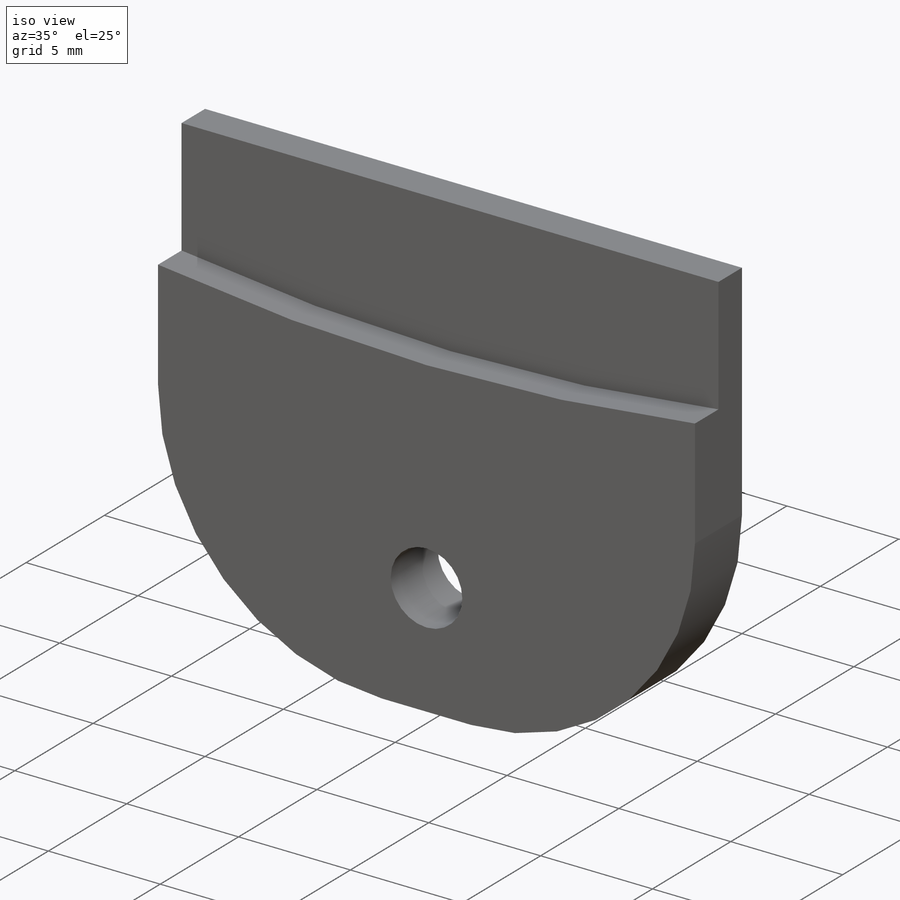
[diagram: iso view]
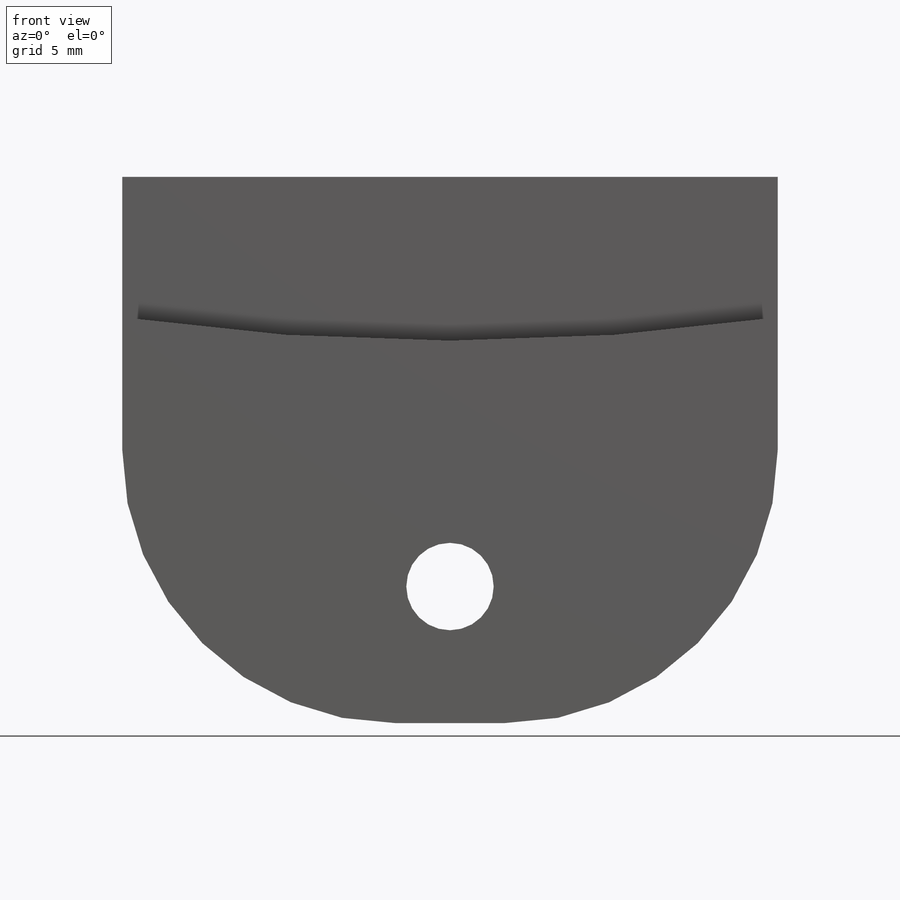
[diagram: front view]
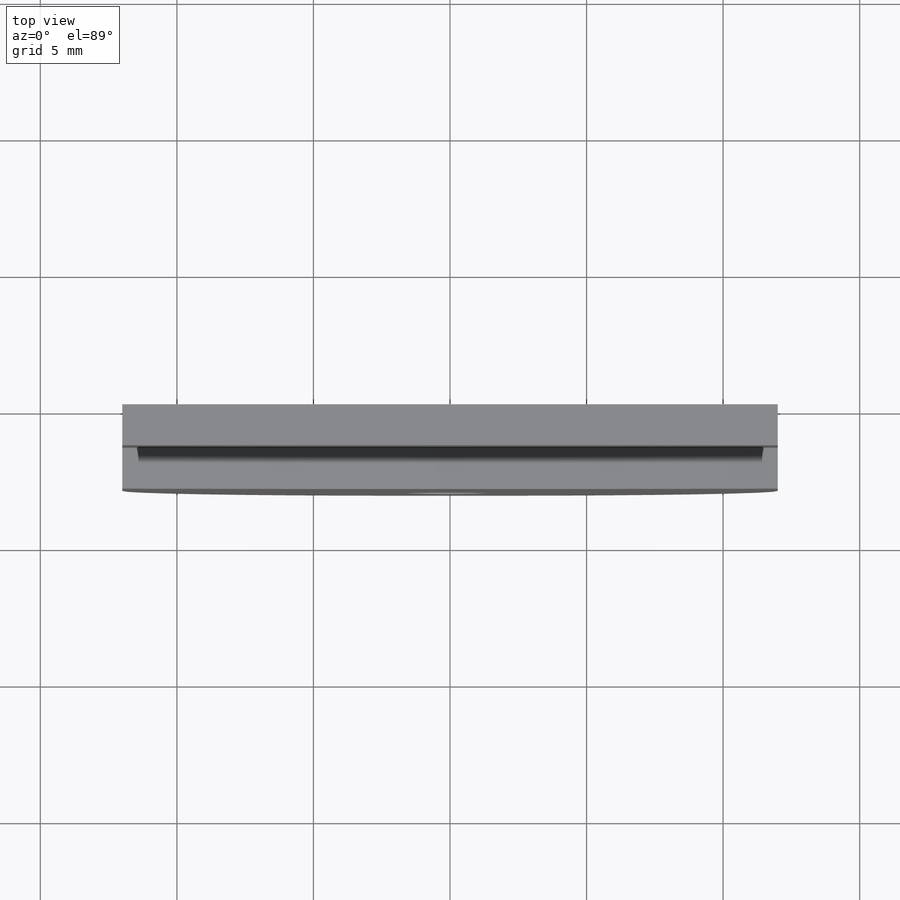
[diagram: top view]
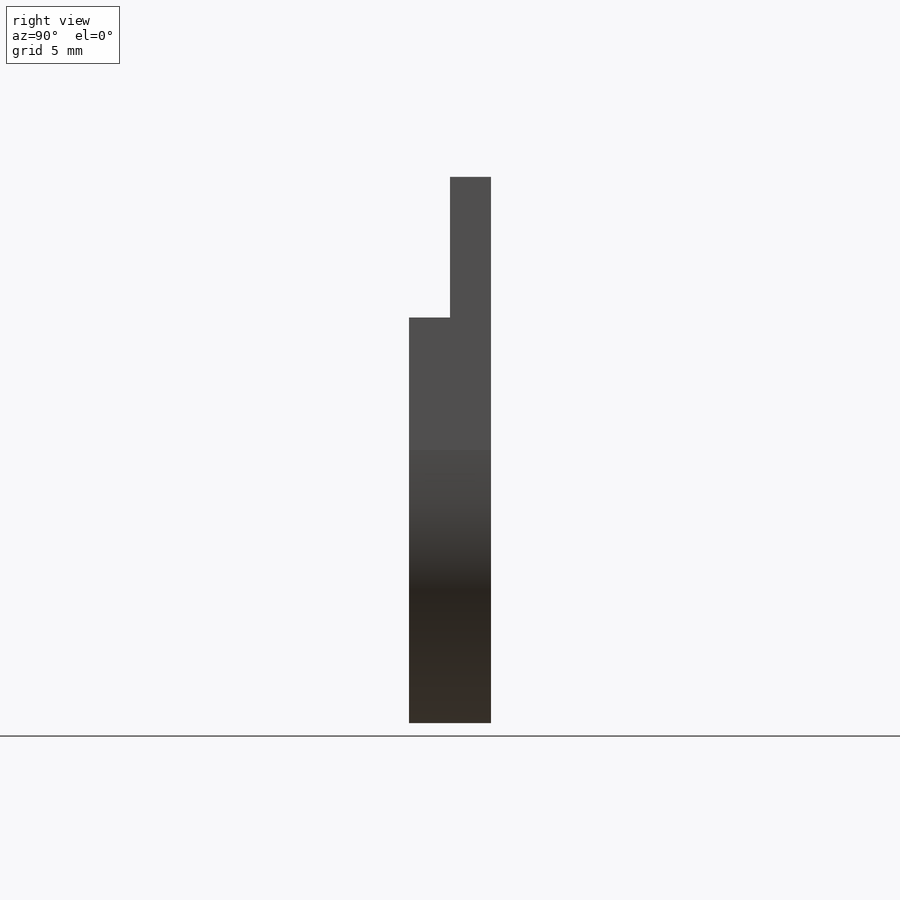
[diagram: right view]
SOLIDWORKS PART (.sldprt)
format: sldprt  version: not decoded by parser v0  size: 160,768 bytes
history: native  units: mm
features: sketch x3, cut_extrude x2, material x1, extrude x1, fillet x1 (+11 scaffold rows collapsed)
feature tree (19):
  scaffold x11  (default folders/planes/origin — collapsed)
  material  "Material <not specified>"
  sketch  "Sketch1"  dims[D1=24.0mm D2=20.0mm]
  extrude  "Boss-Extrude1"  Depth=3mm
  sketch  "Sketch3"  dims[D1=3.2mm D2=5.0mm]
  cut_extrude  "Cut-Extrude1"  [1 undecoded]
  sketch  "Sketch2"  dims[D1=85.0mm D2=9.0mm]
  cut_extrude  "Cut-Extrude2"  Depth=1.5mm
  fillet  "Fillet1"  Radius=10mm
decode coverage: 6 of 7 modeling features carry decoded parameters
note: 1 parameter value undecoded
note: suppression state not decoded; provenance and decode notes live in map.json
